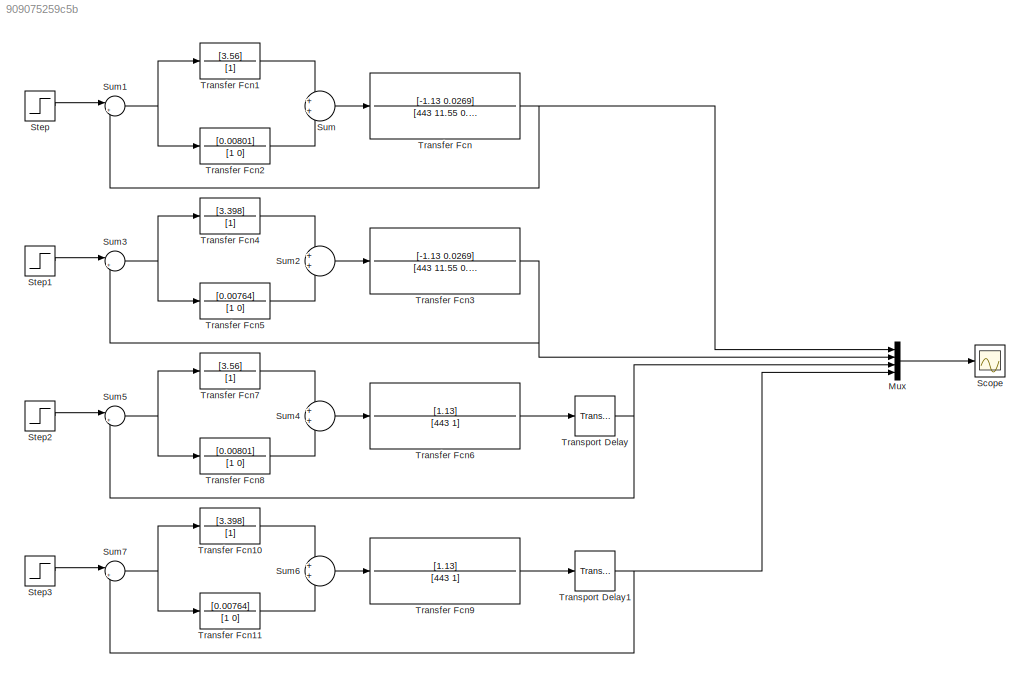
MODEL slx_909075259c5b
KIND model
CONFIG AbsTol = auto
CONFIG EnableMultiTasking = off
CONFIG FixedStep = auto
CONFIG MaxStep = 1e-2
CONFIG MinStep = auto
CONFIG RelTol = 1e-3
CONFIG SampleTimeConstraint = Unconstrained
CONFIG SolverName = VariableStepAuto
CONFIG StartTime = 0.0
CONFIG StopTime = 1500
BLOCK [Mux] Mux
  DisplayOption = bar
  Ports = [4, 1]
BLOCK [Scope] Scope
  Floating = off
  NumInputPorts = 1
  Ports = [1]
  ScopeSpecificationString = Simulink.scopes.TimeScopeBlockCfg('CurrentConfiguration', extmgr.ConfigurationSet(extmgr.Configuration('Core','General UI',true),extmgr.Configuration('Core','Source UI',true),extmgr.Configuration('Sources','WiredSimulink',true,'DataLogging',true,'DataLoggingSaveFormat','Array'),extmgr.Configuration('Visuals','Time Domain',true,'SerializedDisplays',{struct('MinYLimReal','-0.30441','MaxYLimReal','1....<+1489ch>
BLOCK [Step] Step
  SampleTime = 0
  Time = 0
BLOCK [Step] Step1
  SampleTime = 0
  Time = 0
BLOCK [Step] Step2
  SampleTime = 0
  Time = 0
BLOCK [Step] Step3
  SampleTime = 0
  Time = 0
BLOCK [Sum] Sum
  Ports = [2, 1]
BLOCK [Sum] Sum1
  Inputs = |+-
  Ports = [2, 1]
BLOCK [Sum] Sum2
  Ports = [2, 1]
BLOCK [Sum] Sum3
  Inputs = |+-
  Ports = [2, 1]
BLOCK [Sum] Sum4
  Ports = [2, 1]
BLOCK [Sum] Sum5
  Inputs = |+-
  Ports = [2, 1]
BLOCK [Sum] Sum6
  Ports = [2, 1]
BLOCK [Sum] Sum7
  Inputs = |+-
  Ports = [2, 1]
BLOCK [TransferFcn] Transfer Fcn
  Denominator = [443 11.55 0.0238]
  Numerator = [-1.13 0.0269]
BLOCK [TransferFcn] Transfer Fcn1
  Denominator = [1]
  Numerator = [3.56]
BLOCK [TransferFcn] Transfer Fcn10
  Denominator = [1]
  Numerator = [3.398]
BLOCK [TransferFcn] Transfer Fcn11
  Denominator = [1 0]
  Numerator = [0.00764]
BLOCK [TransferFcn] Transfer Fcn2
  Denominator = [1 0]
  Numerator = [0.00801]
BLOCK [TransferFcn] Transfer Fcn3
  Denominator = [443 11.55 0.0238]
  Numerator = [-1.13 0.0269]
BLOCK [TransferFcn] Transfer Fcn4
  Denominator = [1]
  Numerator = [3.398]
BLOCK [TransferFcn] Transfer Fcn5
  Denominator = [1 0]
  Numerator = [0.00764]
BLOCK [TransferFcn] Transfer Fcn6
  Denominator = [443 1]
  Numerator = [1.13]
BLOCK [TransferFcn] Transfer Fcn7
  Denominator = [1]
  Numerator = [3.56]
BLOCK [TransferFcn] Transfer Fcn8
  Denominator = [1 0]
  Numerator = [0.00801]
BLOCK [TransferFcn] Transfer Fcn9
  Denominator = [443 1]
  Numerator = [1.13]
BLOCK [TransportDelay] Transport Delay
  DelayTime = 84
  Ports = [1, 1]
BLOCK [TransportDelay] Transport Delay1
  DelayTime = 84
  Ports = [1, 1]
LINE Mux:1 -> Scope:1
LINE Step1:1 -> Sum3:1
LINE Step2:1 -> Sum5:1
LINE Step3:1 -> Sum7:1
LINE Step:1 -> Sum1:1
NET Sum1:1 -> Transfer Fcn1:1, Transfer Fcn2:1
LINE Sum2:1 -> Transfer Fcn3:1
NET Sum3:1 -> Transfer Fcn4:1, Transfer Fcn5:1
LINE Sum4:1 -> Transfer Fcn6:1
NET Sum5:1 -> Transfer Fcn7:1, Transfer Fcn8:1
LINE Sum6:1 -> Transfer Fcn9:1
NET Sum7:1 -> Transfer Fcn10:1, Transfer Fcn11:1
LINE Sum:1 -> Transfer Fcn:1
LINE Transfer Fcn10:1 -> Sum6:1
LINE Transfer Fcn11:1 -> Sum6:2
LINE Transfer Fcn1:1 -> Sum:1
LINE Transfer Fcn2:1 -> Sum:2
NET Transfer Fcn3:1 -> Mux:2, Sum3:2
LINE Transfer Fcn4:1 -> Sum2:1
LINE Transfer Fcn5:1 -> Sum2:2
LINE Transfer Fcn6:1 -> Transport Delay:1
LINE Transfer Fcn7:1 -> Sum4:1
LINE Transfer Fcn8:1 -> Sum4:2
LINE Transfer Fcn9:1 -> Transport Delay1:1
NET Transfer Fcn:1 -> Mux:1, Sum1:2
NET Transport Delay1:1 -> Mux:4, Sum7:2
NET Transport Delay:1 -> Mux:3, Sum5:2
note: NET lines group one-source signal fan-out (src -> all destinations, sorted); 1:1 wires keep LINE
